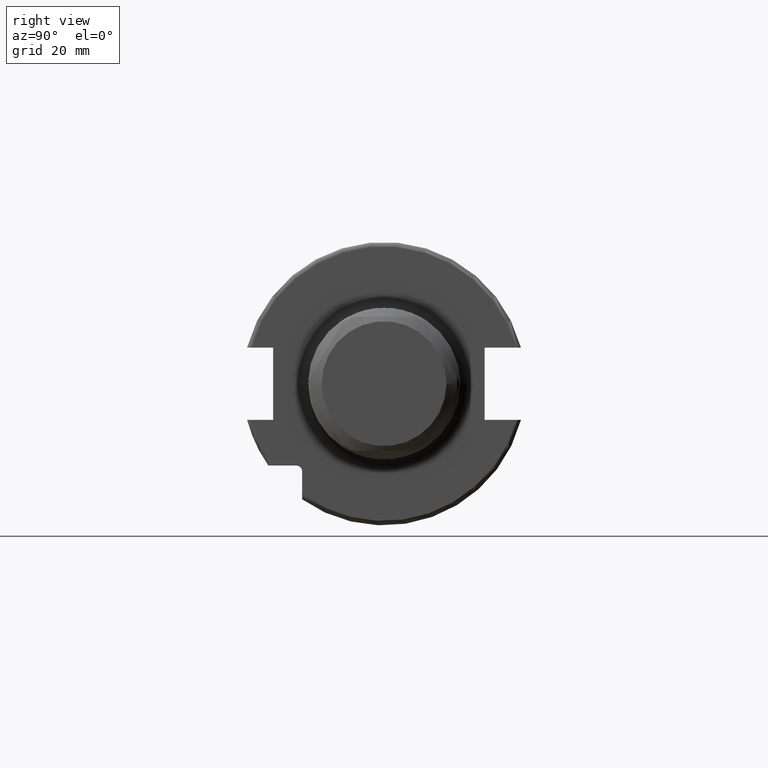
[diagram: clean part render]
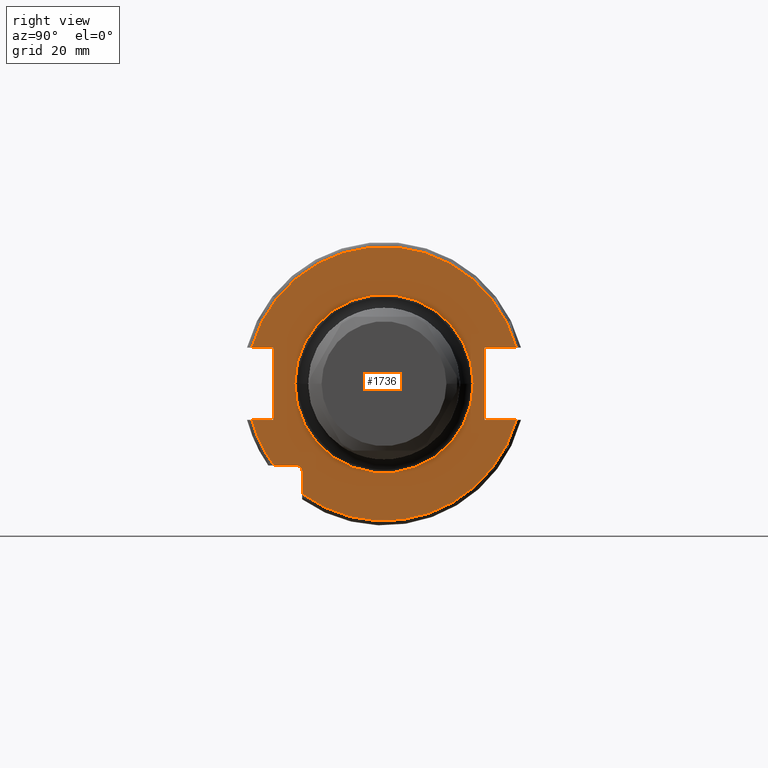
[diagram: same view with one face highlighted and labeled with its STEP entity id]
A machine part, right view. The second image highlights one B-rep face of the part: STEP entity #1736.
In plain terms, the highlighted planar face has unit normal (1, 0, 0).
Its self-contained STEP definition (entity closure, byte-faithful):
#126=DIRECTION('',(0.E0,0.E0,1.E0));
#127=VECTOR('',#126,4.990259339464E0);
#128=CARTESIAN_POINT('',(1.905E1,-1.835E1,-2.469025933946E1));
#129=LINE('',#128,#127);
#130=DIRECTION('',(0.E0,-1.E0,0.E0));
#131=VECTOR('',#130,4.990259339464E0);
#132=CARTESIAN_POINT('',(1.905E1,-1.97E1,-1.835E1));
#133=LINE('',#132,#131);
#134=DIRECTION('',(0.E0,1.E0,0.E0));
#135=VECTOR('',#134,4.826950757280E0);
#136=CARTESIAN_POINT('',(1.905E1,-2.967695075728E1,-8.1E0));
#137=LINE('',#136,#135);
#138=DIRECTION('',(0.E0,0.E0,1.E0));
#139=VECTOR('',#138,1.62E1);
#140=CARTESIAN_POINT('',(1.905E1,-2.485E1,-8.1E0));
#141=LINE('',#140,#139);
#142=DIRECTION('',(0.E0,1.E0,0.E0));
#143=VECTOR('',#142,4.826950757280E0);
#144=CARTESIAN_POINT('',(1.905E1,-2.967695075728E1,8.1E0));
#145=LINE('',#144,#143);
#146=DIRECTION('',(0.E0,-1.E0,0.E0));
#147=VECTOR('',#146,7.126950757280E0);
#148=CARTESIAN_POINT('',(1.905E1,2.967695075728E1,8.1E0));
#149=LINE('',#148,#147);
#150=DIRECTION('',(0.E0,0.E0,-1.E0));
#151=VECTOR('',#150,1.62E1);
#152=CARTESIAN_POINT('',(1.905E1,2.255E1,8.1E0));
#153=LINE('',#152,#151);
#154=DIRECTION('',(0.E0,-1.E0,0.E0));
#155=VECTOR('',#154,7.126950757280E0);
#156=CARTESIAN_POINT('',(1.905E1,2.967695075728E1,-8.1E0));
#157=LINE('',#156,#155);
#158=CARTESIAN_POINT('',(1.905E1,0.E0,0.E0));
#159=DIRECTION('',(1.E0,0.E0,0.E0));
#160=DIRECTION('',(0.E0,-1.E0,0.E0));
#161=AXIS2_PLACEMENT_3D('',#158,#159,#160);
#163=CARTESIAN_POINT('',(1.905E1,0.E0,0.E0));
#164=DIRECTION('',(1.E0,0.E0,0.E0));
#165=DIRECTION('',(0.E0,1.E0,0.E0));
#166=AXIS2_PLACEMENT_3D('',#163,#164,#165);
#194=CARTESIAN_POINT('',(1.905E1,0.E0,0.E0));
#195=DIRECTION('',(-1.E0,0.E0,0.E0));
#196=DIRECTION('',(0.E0,9.647119303464E-1,-2.633075985372E-1));
#197=AXIS2_PLACEMENT_3D('',#194,#195,#196);
#210=CARTESIAN_POINT('',(1.905E1,0.E0,0.E0));
#211=DIRECTION('',(-1.E0,0.E0,0.E0));
#212=DIRECTION('',(0.E0,-8.026089992512E-1,-5.965054855750E-1));
#213=AXIS2_PLACEMENT_3D('',#210,#211,#212);
#525=CARTESIAN_POINT('',(1.905E1,-1.97E1,-1.97E1));
#526=DIRECTION('',(-1.E0,0.E0,0.E0));
#527=DIRECTION('',(0.E0,0.E0,1.E0));
#528=AXIS2_PLACEMENT_3D('',#525,#526,#527);
#882=CARTESIAN_POINT('',(1.905E1,0.E0,0.E0));
#883=DIRECTION('',(1.E0,0.E0,0.E0));
#884=DIRECTION('',(0.E0,9.647119303464E-1,2.633075985372E-1));
#885=AXIS2_PLACEMENT_3D('',#882,#883,#884);
#1402=CARTESIAN_POINT('',(1.905E1,2.967695075728E1,8.1E0));
#1403=CARTESIAN_POINT('',(1.905E1,2.255E1,8.1E0));
#1404=VERTEX_POINT('',#1402);
#1405=VERTEX_POINT('',#1403);
#1406=CARTESIAN_POINT('',(1.905E1,2.255E1,-8.1E0));
#1407=VERTEX_POINT('',#1406);
#1408=CARTESIAN_POINT('',(1.905E1,2.967695075728E1,-8.1E0));
#1409=VERTEX_POINT('',#1408);
#1410=CARTESIAN_POINT('',(1.905E1,-2.967695075728E1,-8.1E0));
#1411=CARTESIAN_POINT('',(1.905E1,-2.485E1,-8.1E0));
#1412=VERTEX_POINT('',#1410);
#1413=VERTEX_POINT('',#1411);
#1414=CARTESIAN_POINT('',(1.905E1,-2.485E1,8.1E0));
#1415=VERTEX_POINT('',#1414);
#1416=CARTESIAN_POINT('',(1.905E1,-2.967695075728E1,8.1E0));
#1417=VERTEX_POINT('',#1416);
#1463=CARTESIAN_POINT('',(1.905E1,-1.835E1,-2.469025933946E1));
#1464=VERTEX_POINT('',#1463);
#1471=CARTESIAN_POINT('',(1.905E1,-1.97E1,-1.835E1));
#1472=CARTESIAN_POINT('',(1.905E1,-2.469025933946E1,-1.835E1));
#1473=VERTEX_POINT('',#1471);
#1474=VERTEX_POINT('',#1472);
#1475=CARTESIAN_POINT('',(1.905E1,-1.835E1,-1.97E1));
#1476=VERTEX_POINT('',#1475);
#1483=CARTESIAN_POINT('',(1.905E1,-2.E1,1.286498119741E-14));
#1484=CARTESIAN_POINT('',(1.905E1,2.E1,-1.531427479571E-14));
#1485=VERTEX_POINT('',#1483);
#1486=VERTEX_POINT('',#1484);
#1700=CARTESIAN_POINT('',(1.905E1,0.E0,0.E0));
#1701=DIRECTION('',(1.E0,0.E0,0.E0));
#1702=DIRECTION('',(0.E0,-1.E0,0.E0));
#1703=AXIS2_PLACEMENT_3D('',#1700,#1701,#1702);
#1704=PLANE('',#1703);
#1706=ORIENTED_EDGE('',*,*,#1705,.T.);
#1708=ORIENTED_EDGE('',*,*,#1707,.F.);
#1710=ORIENTED_EDGE('',*,*,#1709,.T.);
#1712=ORIENTED_EDGE('',*,*,#1711,.T.);
#1714=ORIENTED_EDGE('',*,*,#1713,.T.);
#1716=ORIENTED_EDGE('',*,*,#1715,.T.);
#1718=ORIENTED_EDGE('',*,*,#1717,.F.);
#1720=ORIENTED_EDGE('',*,*,#1719,.F.);
#1722=ORIENTED_EDGE('',*,*,#1721,.T.);
#1723=ORIENTED_EDGE('',*,*,#1684,.T.);
#1725=ORIENTED_EDGE('',*,*,#1724,.F.);
#1727=ORIENTED_EDGE('',*,*,#1726,.T.);
#1728=EDGE_LOOP('',(#1706,#1708,#1710,#1712,#1714,#1716,#1718,#1720,#1722,#1723,
#1725,#1727));
#1729=FACE_OUTER_BOUND('',#1728,.F.);
#1731=ORIENTED_EDGE('',*,*,#1730,.T.);
#1733=ORIENTED_EDGE('',*,*,#1732,.T.);
#1734=EDGE_LOOP('',(#1731,#1733));
#1735=FACE_BOUND('',#1734,.F.);
#1736=ADVANCED_FACE('',(#1729,#1735),#1704,.T.);
#162=CIRCLE('',#161,2.E1);
#167=CIRCLE('',#166,2.E1);
#198=CIRCLE('',#197,3.07625E1);
#214=CIRCLE('',#213,3.07625E1);
#529=CIRCLE('',#528,1.35E0);
#886=CIRCLE('',#885,3.07625E1);
#1684=EDGE_CURVE('',#1405,#1407,#153,.T.);
#1705=EDGE_CURVE('',#1464,#1476,#129,.T.);
#1707=EDGE_CURVE('',#1473,#1476,#529,.T.);
#1709=EDGE_CURVE('',#1473,#1474,#133,.T.);
#1711=EDGE_CURVE('',#1474,#1412,#214,.T.);
#1713=EDGE_CURVE('',#1412,#1413,#137,.T.);
#1715=EDGE_CURVE('',#1413,#1415,#141,.T.);
#1717=EDGE_CURVE('',#1417,#1415,#145,.T.);
#1719=EDGE_CURVE('',#1404,#1417,#886,.T.);
#1721=EDGE_CURVE('',#1404,#1405,#149,.T.);
#1724=EDGE_CURVE('',#1409,#1407,#157,.T.);
#1726=EDGE_CURVE('',#1409,#1464,#198,.T.);
#1730=EDGE_CURVE('',#1485,#1486,#162,.T.);
#1732=EDGE_CURVE('',#1486,#1485,#167,.T.);